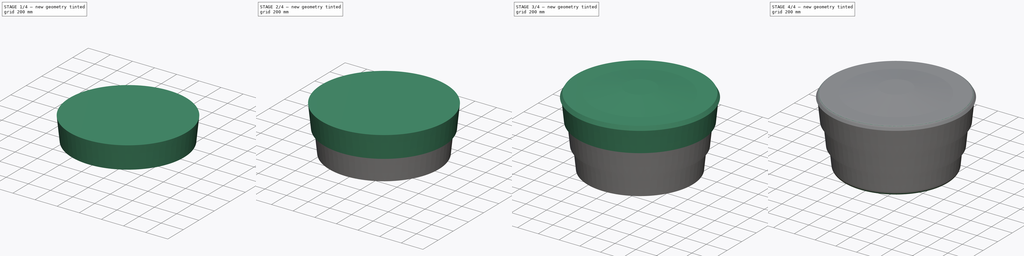
[diagram: build sequence overview — one tinted view per stage of 4, left to right]
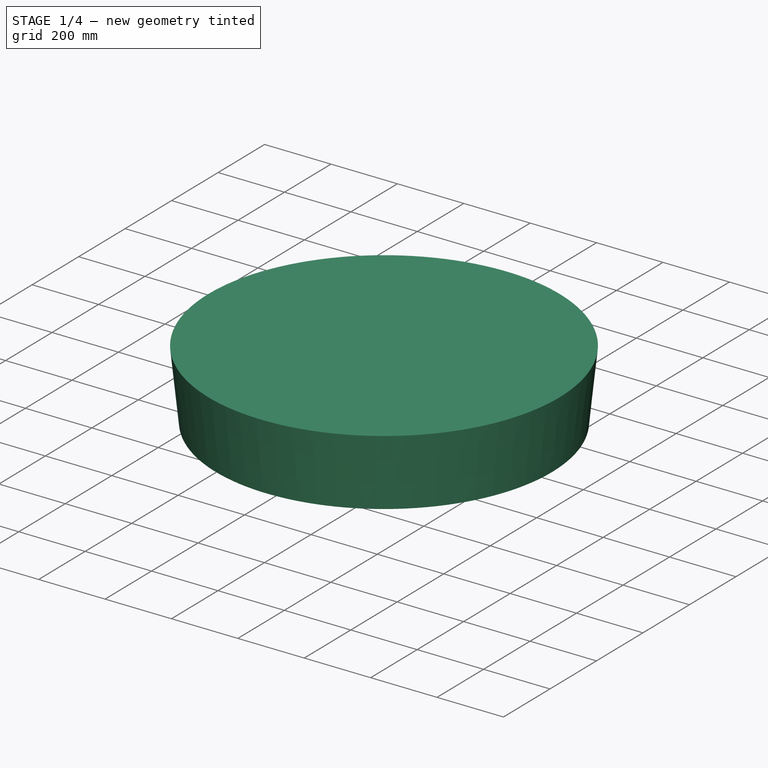
[diagram: stage 1 of 4 — iso view after this stage's code; geometry added in this stage tinted green]
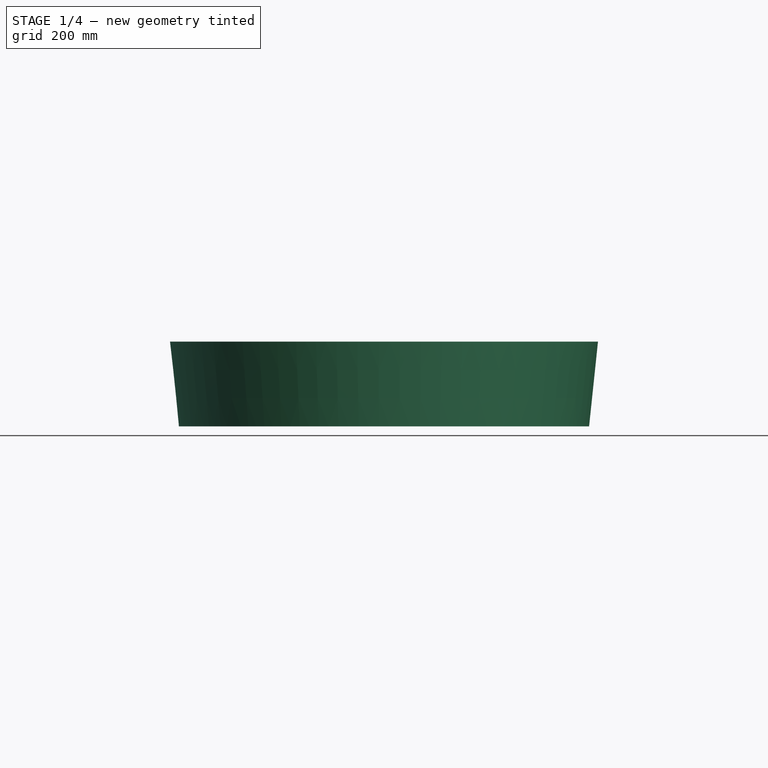
[diagram: stage 1 of 4 — front view after this stage's code; geometry added in this stage tinted green]
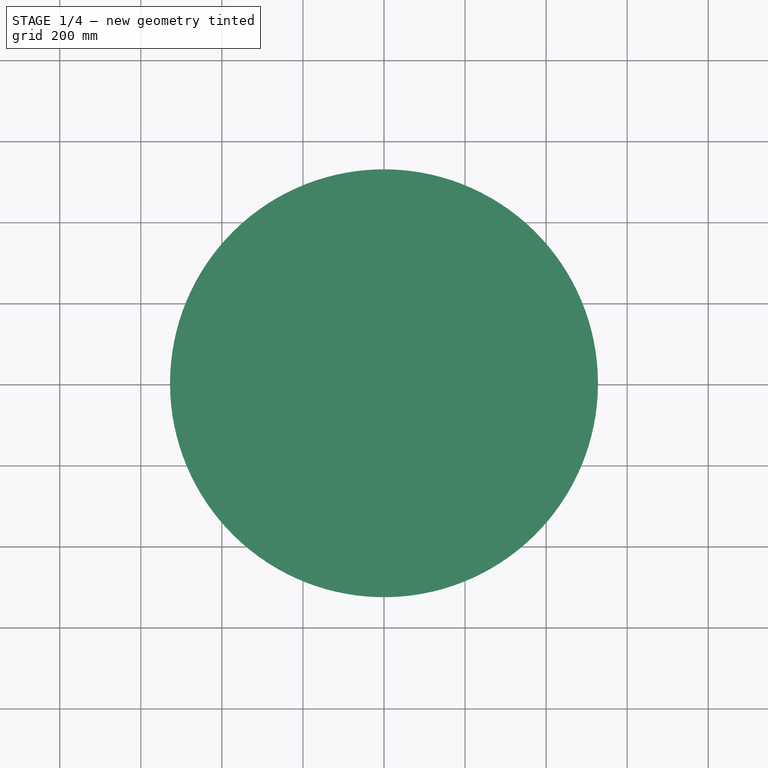
[diagram: stage 1 of 4 — top view after this stage's code; geometry added in this stage tinted green]
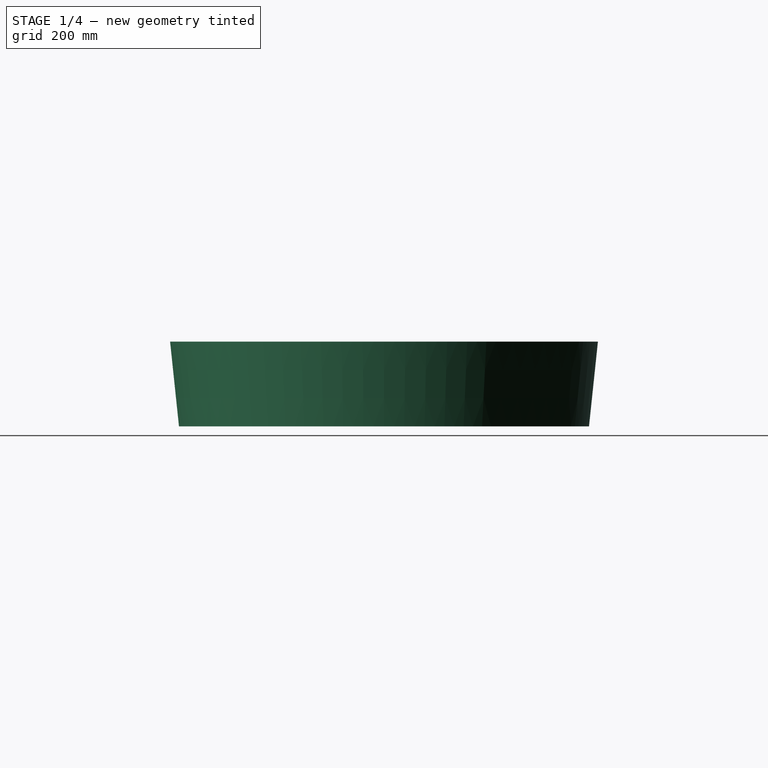
[diagram: stage 1 of 4 — right view after this stage's code; geometry added in this stage tinted green]
FCSTD DOCUMENT  (FreeCAD 0.17R8743 (Git))
Label: Water tank 500L
License: CreativeCommons Attribution
LicenseURL: http://creativecommons.org/licenses/by/4.0/
objects: Sketcher::SketchObject×4, PartDesign::Pad×3, PartDesign::Draft×3, PartDesign::Fillet×2, PartDesign::Revolution×1, PartDesign::Body×1
note: 18 computed .brp shape members not serialized (recipe doc carries the construction recipe); baked Part::Feature solids carry a one-line shape summary decoded from their .brp

FEATURE [Sketcher::SketchObject] Sketch
  MapMode = 5
  Support = -> [XY_Plane]
  sketch-geometry (1):
    g0: Circle CenterX=0 CenterY=0 CenterZ=0 NormalX=0 NormalY=0 NormalZ=1 Radius=506
  constraints (2):
    c: Coincident(g0,g-1)
    c: Radius(g0) = 506
FEATURE [PartDesign::Pad] Pad
  Length = 209
  Length2 = 100
  Profile = -> Sketch
  Type = 0
FEATURE [PartDesign::Draft] Draft
  Angle = 6
  Base = -> Pad [Face1]
  BaseFeature = -> Pad
  NeutralPlane = -> Pad [Face2]
  PullDirection = -> Pad [Edge1]
  Reversed = true
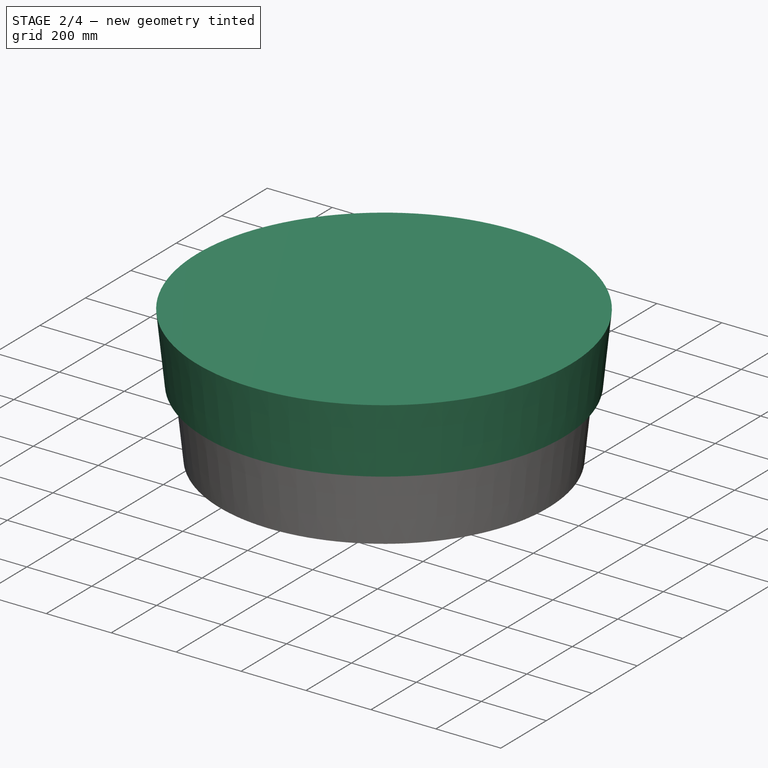
[diagram: stage 2 of 4 — iso view after this stage's code; geometry added in this stage tinted green]
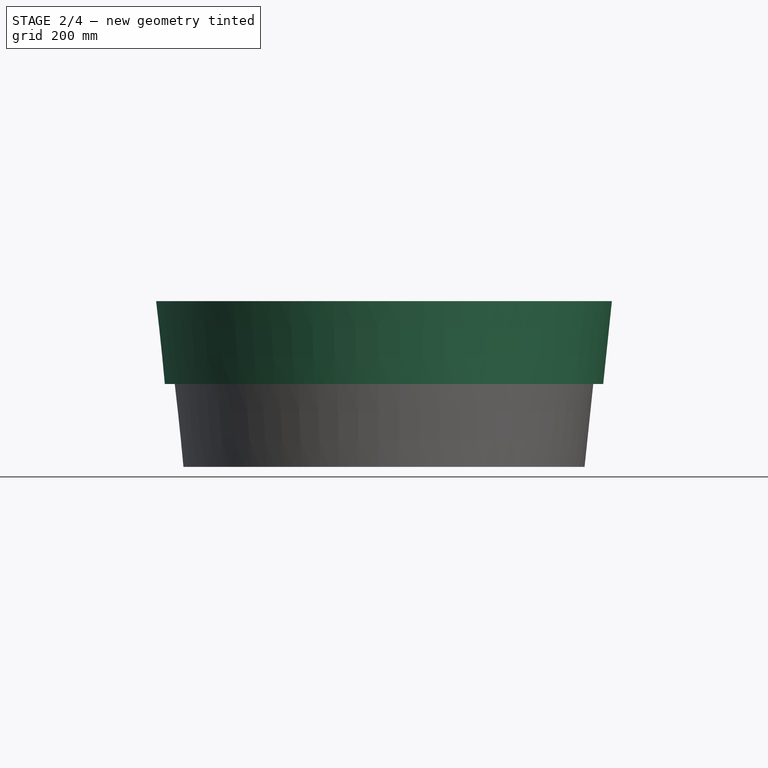
[diagram: stage 2 of 4 — front view after this stage's code; geometry added in this stage tinted green]
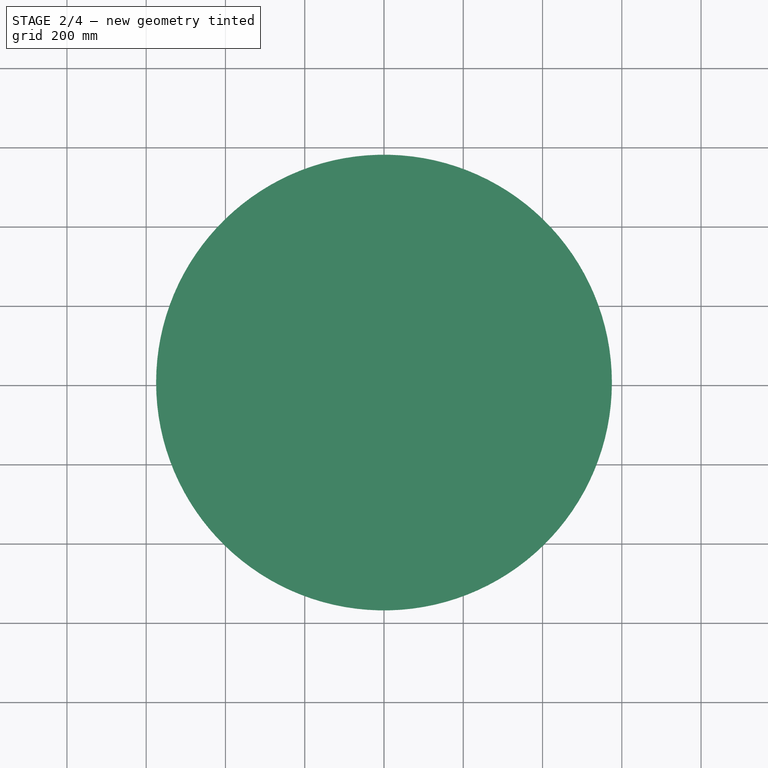
[diagram: stage 2 of 4 — top view after this stage's code; geometry added in this stage tinted green]
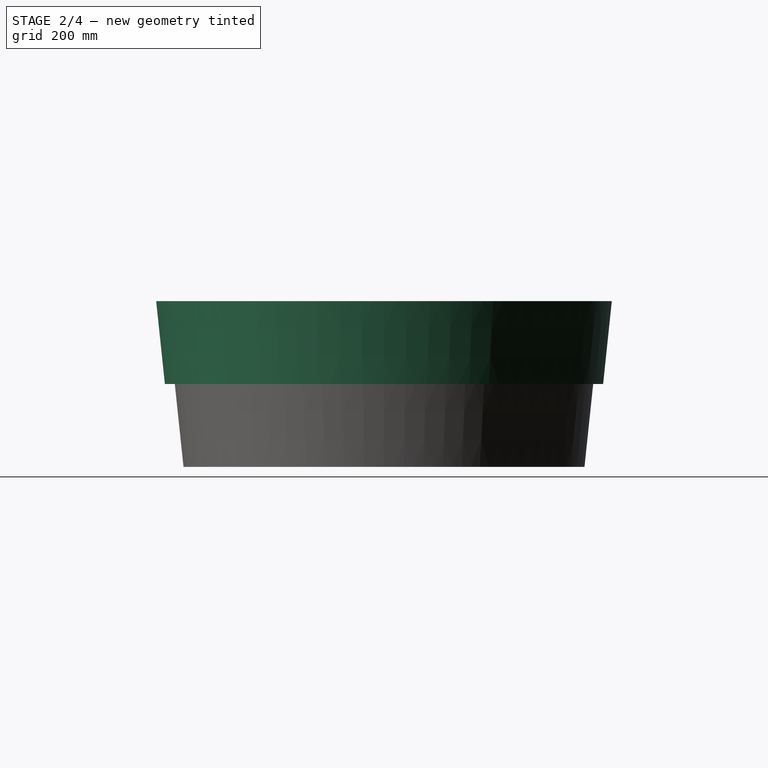
[diagram: stage 2 of 4 — right view after this stage's code; geometry added in this stage tinted green]
FEATURE [Sketcher::SketchObject] Sketch001
  MapMode = 5
  Placement = pos=(0,0,209) rot=(0,0,1;0rad)
  Support = -> [Draft]
  sketch-geometry (1):
    g0: Circle CenterX=0 CenterY=0 CenterZ=0 NormalX=0 NormalY=0 NormalZ=1 Radius=553
  constraints (1):
    c: Radius(g0) = 553
FEATURE [PartDesign::Pad] Pad001
  BaseFeature = -> Draft
  Length = 209
  Length2 = 100
  Profile = -> Sketch001
  Type = 0
FEATURE [PartDesign::Draft] Draft001
  Angle = 6
  Base = -> Pad001 [Face4]
  BaseFeature = -> Pad001
  NeutralPlane = -> Pad001 [Face3]
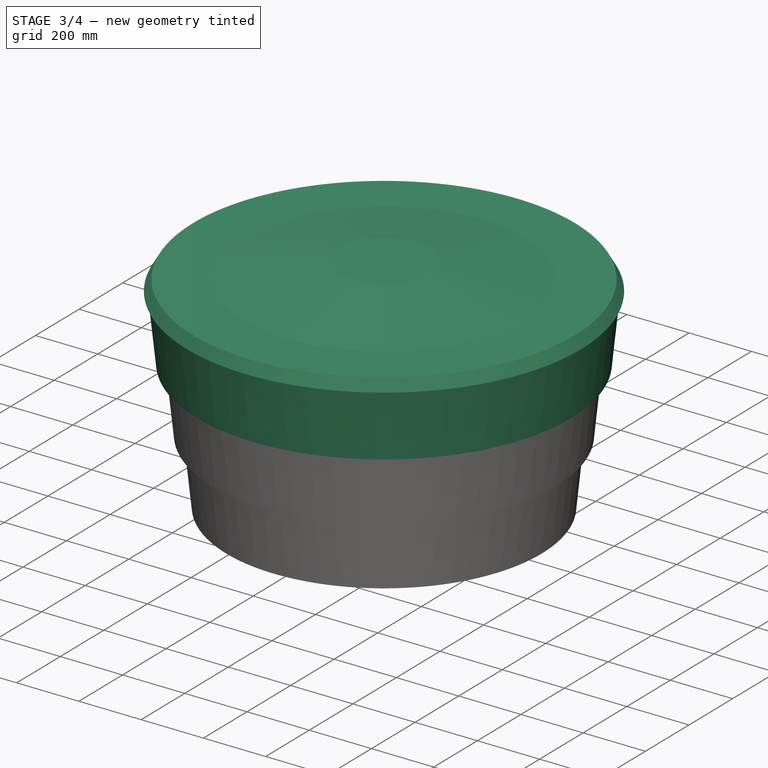
[diagram: stage 3 of 4 — iso view after this stage's code; geometry added in this stage tinted green]
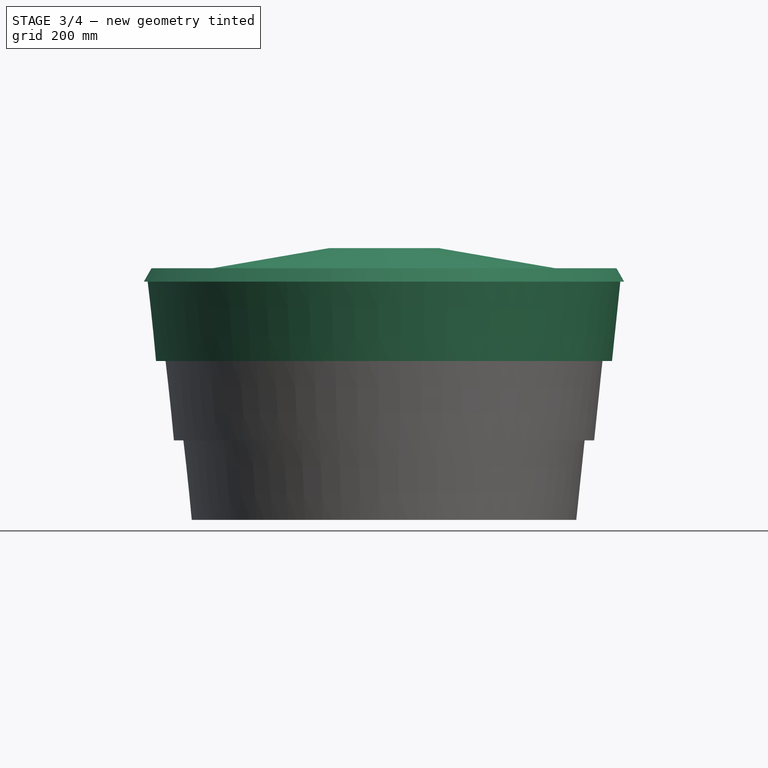
[diagram: stage 3 of 4 — front view after this stage's code; geometry added in this stage tinted green]
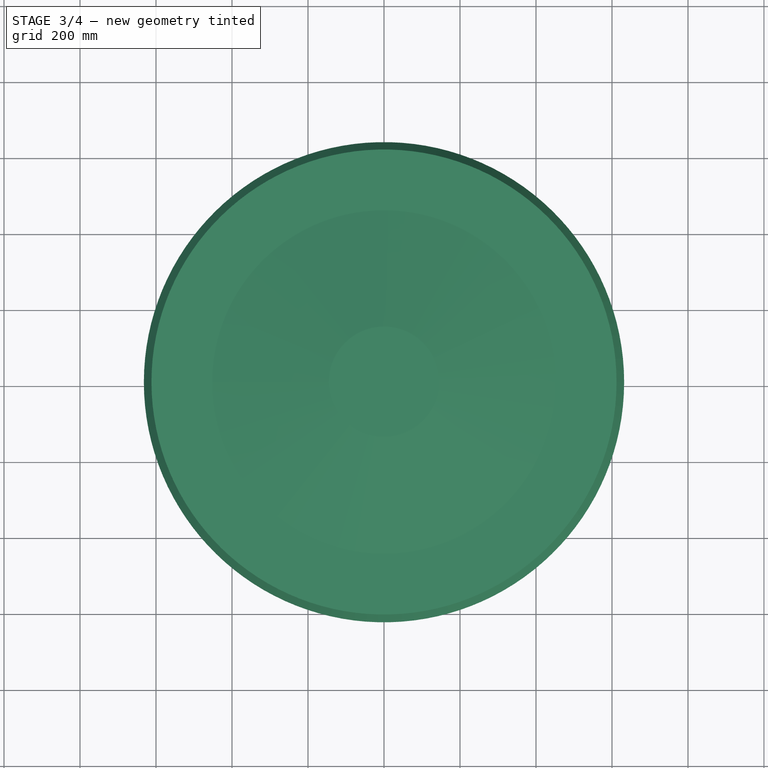
[diagram: stage 3 of 4 — top view after this stage's code; geometry added in this stage tinted green]
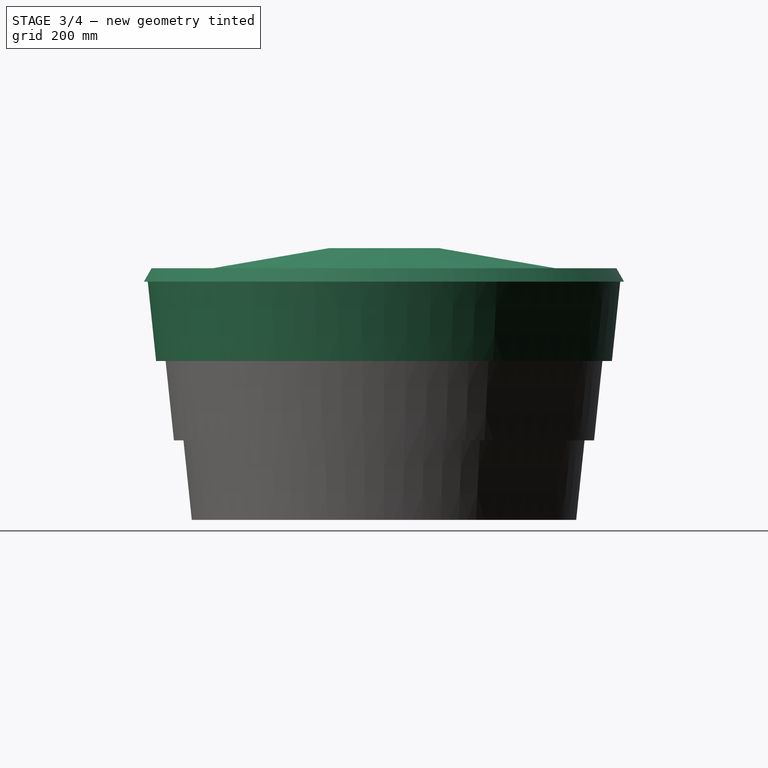
[diagram: stage 3 of 4 — right view after this stage's code; geometry added in this stage tinted green]
FEATURE [Sketcher::SketchObject] Sketch002
  MapMode = 5
  Placement = pos=(0,0,418) rot=(0,0,1;0rad)
  Support = -> [Draft001]
  sketch-geometry (1):
    g0: Circle CenterX=0 CenterY=0 CenterZ=0 NormalX=0 NormalY=0 NormalZ=1 Radius=600
  constraints (1):
    c: Radius(g0) = 600
FEATURE [PartDesign::Pad] Pad002
  BaseFeature = -> Draft001
  Length = 209
  Length2 = 100
  Profile = -> Sketch002
  Type = 0
FEATURE [PartDesign::Draft] Draft002
  Angle = 6
  Base = -> Pad002 [Face6]
  BaseFeature = -> Pad002
  NeutralPlane = -> Pad002 [Face5]
FEATURE [Sketcher::SketchObject] Sketch003
  MapMode = 5
  Placement = pos=(0,0,0) rot=(1,0,0;1.5708rad)
  Support = -> [XZ_Plane]
  sketch-geometry (6):
    g0: LineSegment StartX=0 StartY=627 StartZ=0 EndX=-632 EndY=627 EndZ=0
    g1: LineSegment StartX=-632 StartY=627 StartZ=0 EndX=-612 EndY=662 EndZ=0
    g2: LineSegment StartX=-612 StartY=662 StartZ=0 EndX=-452 EndY=662 EndZ=0
    g3: LineSegment StartX=-452 StartY=662 StartZ=0 EndX=-145 EndY=715 EndZ=0
    g4: LineSegment StartX=-145 StartY=715 StartZ=0 EndX=0 EndY=715 EndZ=0
    g5: LineSegment StartX=0 StartY=715 StartZ=0 EndX=0 EndY=627 EndZ=0
  constraints (18):
    c: Horizontal(g0)
    c: Coincident(g0,g1)
    c: Coincident(g1,g2)
    c: Horizontal(g2)
    c: Coincident(g2,g3)
    c: Coincident(g3,g4)
    c: Horizontal(g4)
    c: Coincident(g4,g5)
    c: Coincident(g5,g0)
    c: Vertical(g5)
    c: DistanceX(g0,g0) = 632
    c: DistanceX(g0) = 0
    c: DistanceY(g0) = 627
    c: DistanceY(g5,g5) = 88
    c: DistanceX(g4,g4) = 145
    c: DistanceY(g1,g1) = 35
    c: DistanceX(g2,g2) = 160
    c: DistanceX(g1,g1) = 20
FEATURE [PartDesign::Revolution] Revolution
  Angle = 360
  Axis = (0,0,1)
  Base = (0,0,0)
  BaseFeature = -> Draft002
  Profile = -> Sketch003
  ReferenceAxis = -> Sketch003 [V_Axis]
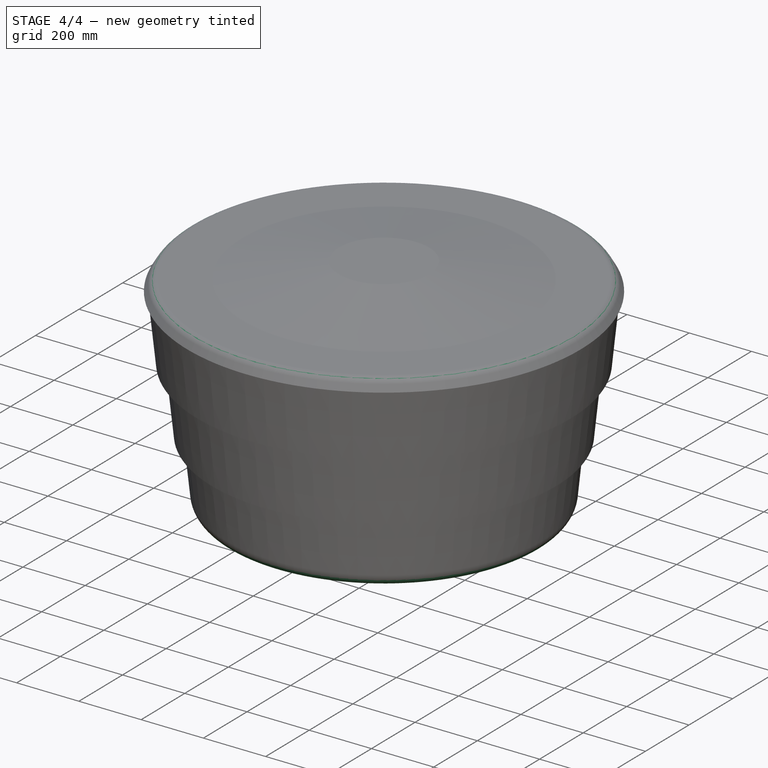
[diagram: stage 4 of 4 — iso view after this stage's code; geometry added in this stage tinted green]
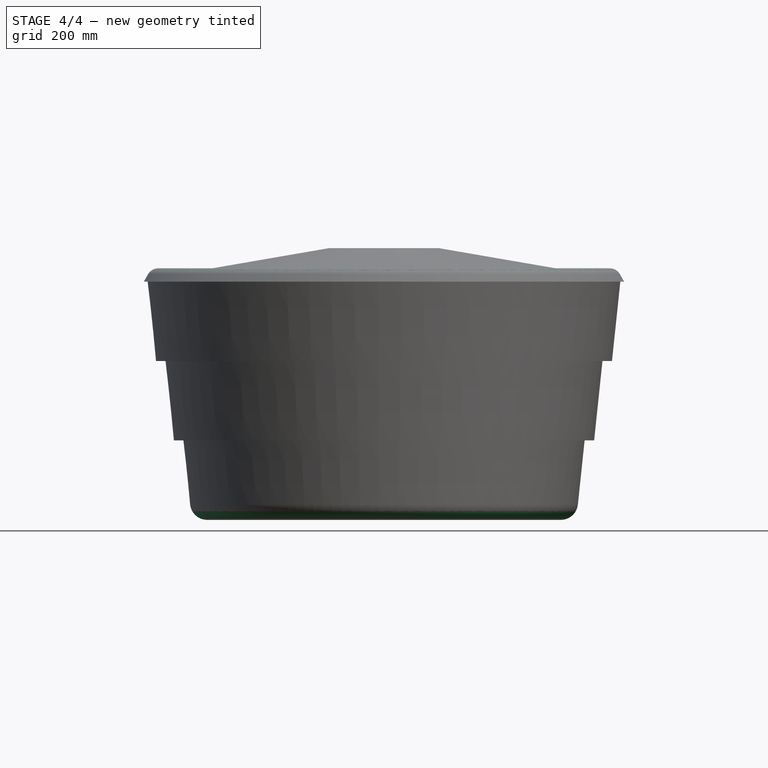
[diagram: stage 4 of 4 — front view after this stage's code; geometry added in this stage tinted green]
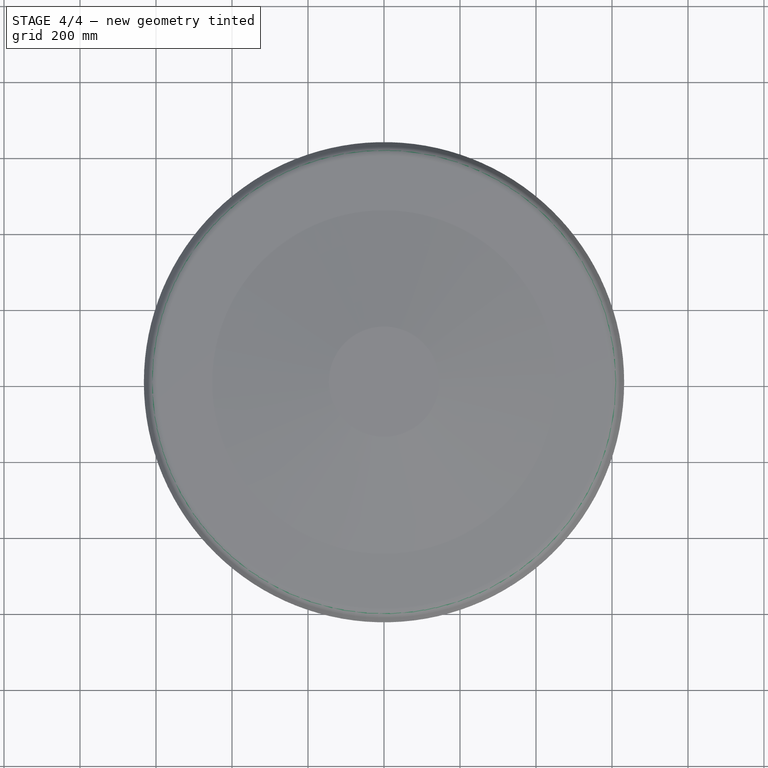
[diagram: stage 4 of 4 — top view after this stage's code; geometry added in this stage tinted green]
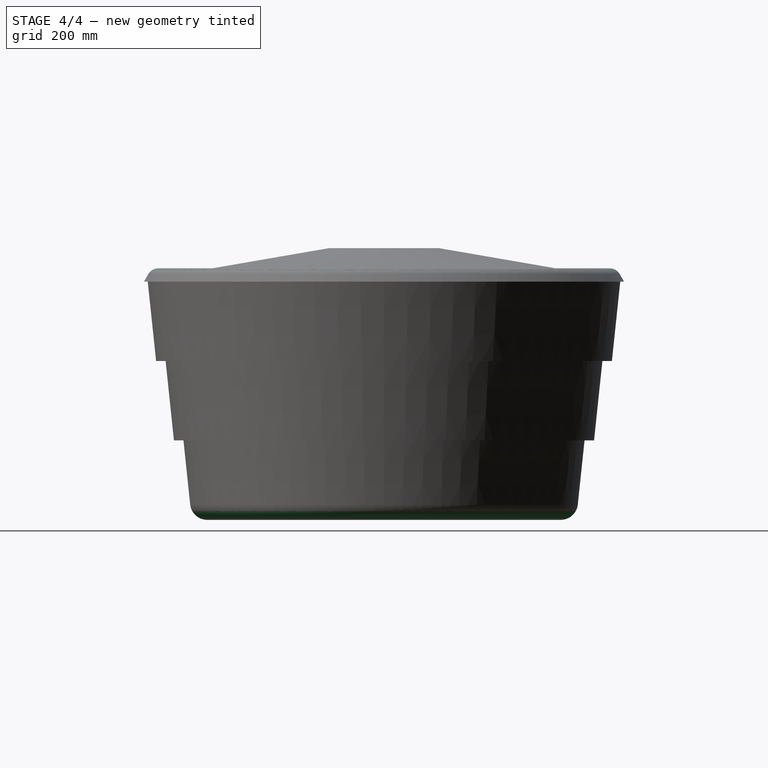
[diagram: stage 4 of 4 — right view after this stage's code; geometry added in this stage tinted green]
FEATURE [PartDesign::Fillet] Fillet
  Base = -> Revolution [Edge1]
  BaseFeature = -> Revolution
  Radius = 45
FEATURE [PartDesign::Fillet] Fillet001
  Base = -> Fillet [Edge13]
  BaseFeature = -> Fillet
  Radius = 31
FEATURE [PartDesign::Body] Body
  Model = -> [Sketch,Pad,Draft,Sketch001,Pad001,Draft001,Sketch002,Pad002,Draft002,Sketch003,Revolution,Fillet,Fillet001]
  Origin = -> BodyOrigin
  Tip = -> Fillet001
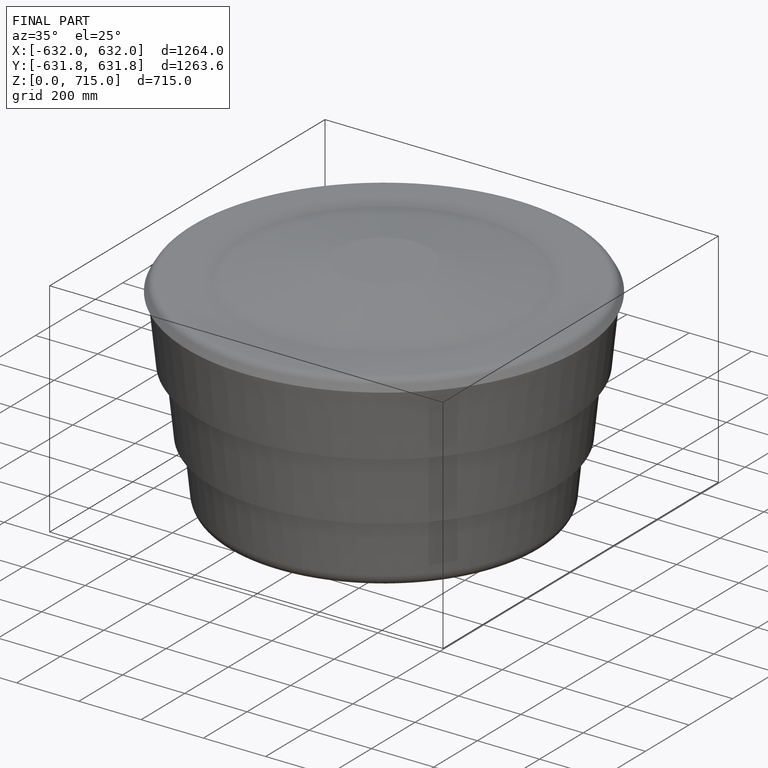
[diagram: finished part — iso view with bounding-box wireframe]
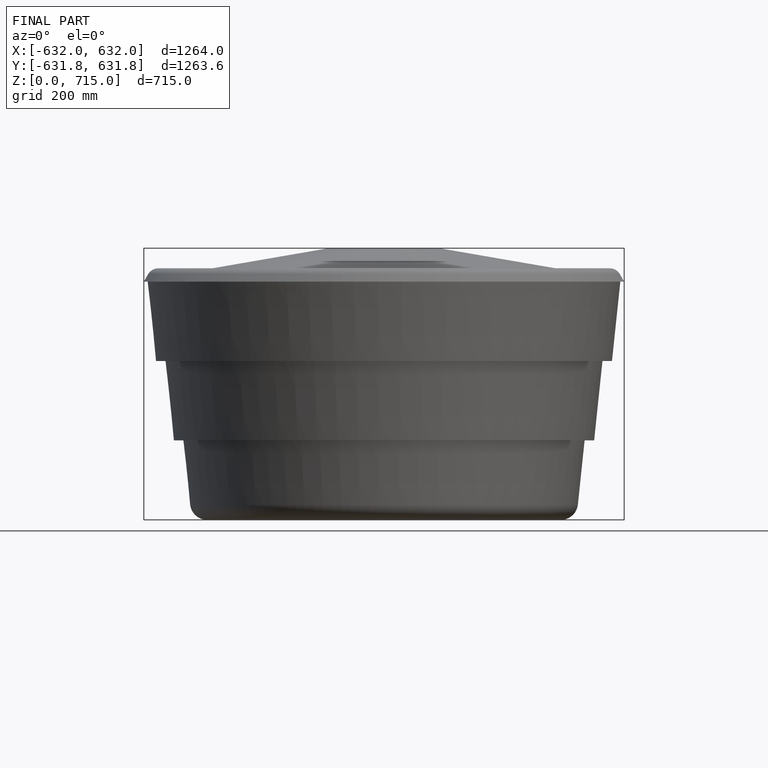
[diagram: finished part — front view with bounding-box wireframe]
